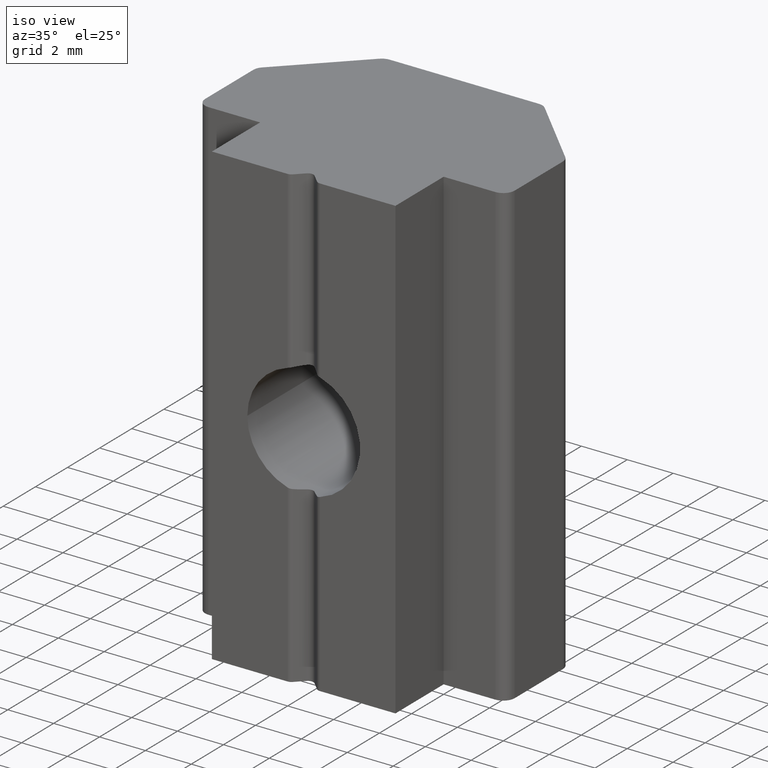
[diagram: clean part render]
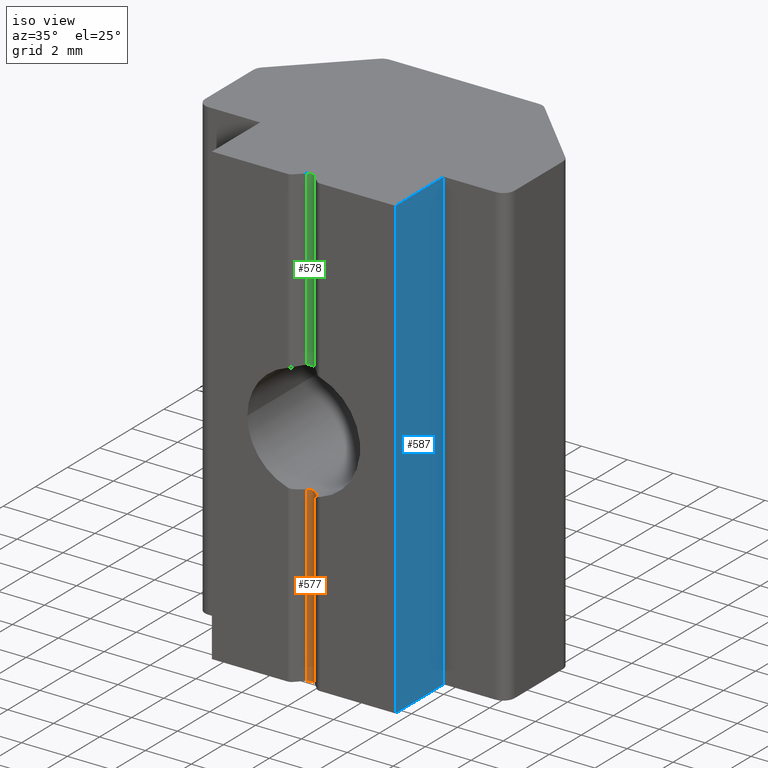
[diagram: same view with three faces highlighted in distinct colors, each labeled with its STEP entity id]
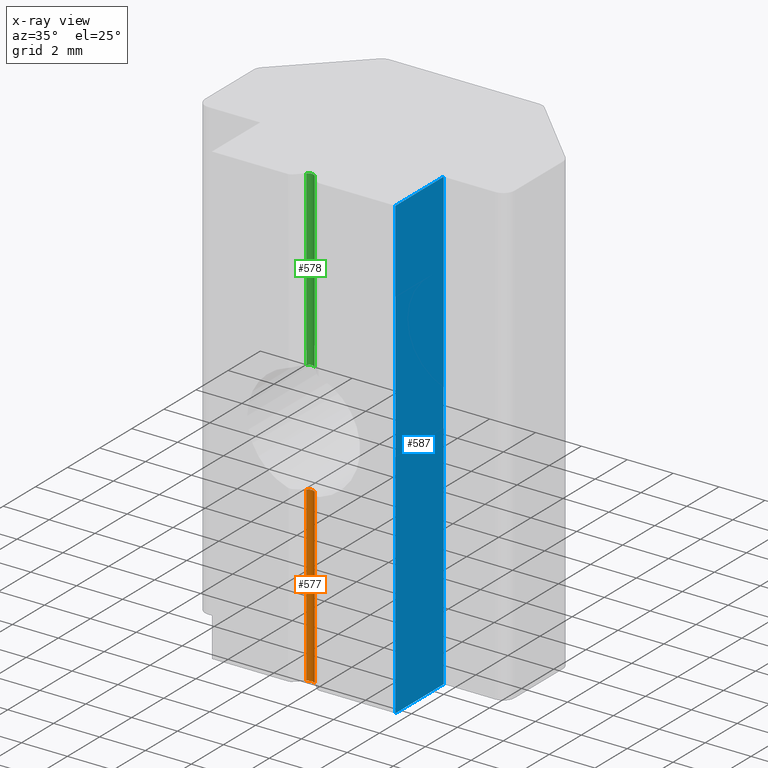
[diagram: x-ray of the same camera — body ghosted, the three highlighted faces saturated]
A machine part, iso view with three faces highlighted in distinct colors.
The next image is the same camera in x-ray (body ghosted, the three faces saturated) — at least one of them is partly hidden behind the body in this view.
Their STEP definitions:

[orange] entity #577 — the highlighted cylindrical surface (edge-blend (fillet) strip) has radius 0.25 mm, axis along (0, 0, 1).
#37=FACE_OUTER_BOUND('',#67,.T.);
#67=EDGE_LOOP('',(#415,#416,#417,#418));
#99=B_SPLINE_CURVE_WITH_KNOTS('',3,(#871,#872,#873,#874,#875,#876,#877,
#878,#879,#880),.UNSPECIFIED.,.F.,.F.,(4,2,2,2,4),(0.0188483560750807,0.0282724998026584,
0.037696643530236,0.0471207872578136,0.0565449309853912),.UNSPECIFIED.);
#113=LINE('',#941,#168);
#114=LINE('',#945,#169);
#168=VECTOR('',#719,10.);
#169=VECTOR('',#724,10.);
#220=CIRCLE('',#638,0.25);
#242=VERTEX_POINT('',#868);
#243=VERTEX_POINT('',#870);
#258=VERTEX_POINT('',#939);
#259=VERTEX_POINT('',#943);
#302=EDGE_CURVE('',#243,#242,#99,.T.);
#321=EDGE_CURVE('',#258,#242,#113,.T.);
#322=EDGE_CURVE('',#259,#258,#220,.T.);
#323=EDGE_CURVE('',#259,#243,#114,.T.);
#415=ORIENTED_EDGE('',*,*,#302,.T.);
#416=ORIENTED_EDGE('',*,*,#321,.F.);
#417=ORIENTED_EDGE('',*,*,#322,.F.);
#418=ORIENTED_EDGE('',*,*,#323,.T.);
#562=CYLINDRICAL_SURFACE('',#637,0.25);
#577=ADVANCED_FACE('',(#37),#562,.F.);
#637=AXIS2_PLACEMENT_3D('',#942,#720,#721);
#638=AXIS2_PLACEMENT_3D('',#944,#722,#723);
#719=DIRECTION('',(0.,0.,1.));
#720=DIRECTION('center_axis',(0.,0.,1.));
#721=DIRECTION('ref_axis',(0.707106781186547,0.707106781186548,0.));
#722=DIRECTION('center_axis',(0.,0.,1.));
#723=DIRECTION('ref_axis',(0.707106781186547,0.707106781186548,0.));
#724=DIRECTION('',(0.,0.,1.));
#868=CARTESIAN_POINT('',(-0.176776695296637,-2.57322330470336,-2.45213626252702));
#870=CARTESIAN_POINT('',(0.176776695296638,-2.57322330470336,-2.45213626252702));
#871=CARTESIAN_POINT('Ctrl Pts',(0.176776695296637,-2.57322330470336,-2.45213626252702));
#872=CARTESIAN_POINT('Ctrl Pts',(0.154592580057102,-2.55103918946383,-2.45373553522653));
#873=CARTESIAN_POINT('Ctrl Pts',(0.126495220658897,-2.53180269429252,-2.45543701473341));
#874=CARTESIAN_POINT('Ctrl Pts',(0.0649067455557279,-2.5062825004358,-2.45783626153865));
#875=CARTESIAN_POINT('Ctrl Pts',(0.0314138124252587,-2.5,-2.4585));
#876=CARTESIAN_POINT('Ctrl Pts',(-0.0314138124252588,-2.5,-2.4585));
#877=CARTESIAN_POINT('Ctrl Pts',(-0.064906745555728,-2.5062825004358,-2.45783626153865));
#878=CARTESIAN_POINT('Ctrl Pts',(-0.126495220658897,-2.53180269429252,-2.45543701473341));
#879=CARTESIAN_POINT('Ctrl Pts',(-0.154592580057102,-2.55103918946383,-2.45373553522653));
#880=CARTESIAN_POINT('Ctrl Pts',(-0.176776695296637,-2.57322330470336,-2.45213626252702));
#939=CARTESIAN_POINT('',(-0.176776695296637,-2.57322330470336,-10.));
#941=CARTESIAN_POINT('',(-0.176776695296637,-2.57322330470336,0.));
#942=CARTESIAN_POINT('Origin',(-4.71467650385233E-30,-2.75,0.));
#943=CARTESIAN_POINT('',(0.176776695296638,-2.57322330470336,-10.));
#944=CARTESIAN_POINT('Origin',(-4.71467650385233E-30,-2.75,-10.));
#945=CARTESIAN_POINT('',(0.176776695296638,-2.57322330470336,0.));

[blue] entity #587 — the highlighted planar face has unit normal (1, 0, 0).
#23=PLANE('',#658);
#47=FACE_OUTER_BOUND('',#77,.T.);
#77=EDGE_LOOP('',(#476,#477,#478,#479));
#109=LINE('',#934,#164);
#135=LINE('',#1007,#190);
#136=LINE('',#1010,#191);
#137=LINE('',#1011,#192);
#164=VECTOR('',#713,10.);
#190=VECTOR('',#783,10.);
#191=VECTOR('',#786,10.);
#192=VECTOR('',#787,10.);
#255=VERTEX_POINT('',#931);
#256=VERTEX_POINT('',#933);
#281=VERTEX_POINT('',#1005);
#282=VERTEX_POINT('',#1009);
#317=EDGE_CURVE('',#255,#256,#109,.T.);
#354=EDGE_CURVE('',#281,#255,#135,.T.);
#355=EDGE_CURVE('',#282,#281,#136,.T.);
#356=EDGE_CURVE('',#256,#282,#137,.T.);
#476=ORIENTED_EDGE('',*,*,#355,.F.);
#477=ORIENTED_EDGE('',*,*,#356,.F.);
#478=ORIENTED_EDGE('',*,*,#317,.F.);
#479=ORIENTED_EDGE('',*,*,#354,.F.);
#587=ADVANCED_FACE('',(#47),#23,.T.);
#658=AXIS2_PLACEMENT_3D('',#1008,#784,#785);
#713=DIRECTION('',(0.,0.,1.));
#783=DIRECTION('',(0.,-1.,0.));
#784=DIRECTION('center_axis',(1.,0.,0.));
#785=DIRECTION('ref_axis',(0.,1.,0.));
#786=DIRECTION('',(0.,0.,-1.));
#787=DIRECTION('',(0.,1.,0.));
#931=CARTESIAN_POINT('',(4.,-3.,-10.));
#933=CARTESIAN_POINT('',(4.,-3.,10.));
#934=CARTESIAN_POINT('',(4.,-3.,0.));
#1005=CARTESIAN_POINT('',(4.,0.,-10.));
#1007=CARTESIAN_POINT('',(4.,-3.,-10.));
#1008=CARTESIAN_POINT('Origin',(4.,-3.,0.));
#1009=CARTESIAN_POINT('',(4.,0.,10.));
#1010=CARTESIAN_POINT('',(4.,0.,0.));
#1011=CARTESIAN_POINT('',(4.,-3.,10.));

[green] entity #578 — the highlighted cylindrical surface (edge-blend (fillet) strip) has radius 0.25 mm, axis along (0, 0, 1).
#38=FACE_OUTER_BOUND('',#68,.T.);
#68=EDGE_LOOP('',(#419,#420,#421,#422));
#102=B_SPLINE_CURVE_WITH_KNOTS('',3,(#902,#903,#904,#905,#906,#907,#908,
#909,#910,#911),.UNSPECIFIED.,.F.,.F.,(4,2,2,2,4),(0.0942416431355526,0.10366578686313,
0.113089930590708,0.122514074318285,0.131938218045863),.UNSPECIFIED.);
#115=LINE('',#948,#170);
#116=LINE('',#951,#171);
#170=VECTOR('',#727,10.);
#171=VECTOR('',#730,10.);
#221=CIRCLE('',#640,0.25);
#248=VERTEX_POINT('',#899);
#249=VERTEX_POINT('',#901);
#260=VERTEX_POINT('',#947);
#261=VERTEX_POINT('',#949);
#308=EDGE_CURVE('',#249,#248,#102,.T.);
#324=EDGE_CURVE('',#248,#260,#115,.T.);
#325=EDGE_CURVE('',#261,#260,#221,.T.);
#326=EDGE_CURVE('',#249,#261,#116,.T.);
#419=ORIENTED_EDGE('',*,*,#308,.T.);
#420=ORIENTED_EDGE('',*,*,#324,.T.);
#421=ORIENTED_EDGE('',*,*,#325,.F.);
#422=ORIENTED_EDGE('',*,*,#326,.F.);
#563=CYLINDRICAL_SURFACE('',#639,0.25);
#578=ADVANCED_FACE('',(#38),#563,.F.);
#639=AXIS2_PLACEMENT_3D('',#946,#725,#726);
#640=AXIS2_PLACEMENT_3D('',#950,#728,#729);
#725=DIRECTION('center_axis',(0.,0.,1.));
#726=DIRECTION('ref_axis',(0.707106781186547,0.707106781186548,0.));
#727=DIRECTION('',(0.,0.,1.));
#728=DIRECTION('center_axis',(0.,0.,-1.));
#729=DIRECTION('ref_axis',(0.707106781186547,0.707106781186548,0.));
#730=DIRECTION('',(0.,0.,1.));
#899=CARTESIAN_POINT('',(0.176776695296638,-2.57322330470336,2.45213626252702));
#901=CARTESIAN_POINT('',(-0.176776695296637,-2.57322330470336,2.45213626252702));
#902=CARTESIAN_POINT('Ctrl Pts',(-0.176776695296637,-2.57322330470336,2.45213626252702));
#903=CARTESIAN_POINT('Ctrl Pts',(-0.154592580057102,-2.55103918946383,2.45373553522653));
#904=CARTESIAN_POINT('Ctrl Pts',(-0.126495220658897,-2.53180269429252,2.45543701473341));
#905=CARTESIAN_POINT('Ctrl Pts',(-0.064906745555728,-2.5062825004358,2.45783626153865));
#906=CARTESIAN_POINT('Ctrl Pts',(-0.0314138124252588,-2.5,2.4585));
#907=CARTESIAN_POINT('Ctrl Pts',(0.0314138124252587,-2.5,2.4585));
#908=CARTESIAN_POINT('Ctrl Pts',(0.0649067455557279,-2.5062825004358,2.45783626153865));
#909=CARTESIAN_POINT('Ctrl Pts',(0.126495220658897,-2.53180269429252,2.45543701473341));
#910=CARTESIAN_POINT('Ctrl Pts',(0.154592580057102,-2.55103918946383,2.45373553522653));
#911=CARTESIAN_POINT('Ctrl Pts',(0.176776695296637,-2.57322330470336,2.45213626252702));
#946=CARTESIAN_POINT('Origin',(-4.71467650385233E-30,-2.75,0.));
#947=CARTESIAN_POINT('',(0.176776695296638,-2.57322330470336,10.));
#948=CARTESIAN_POINT('',(0.176776695296638,-2.57322330470336,0.));
#949=CARTESIAN_POINT('',(-0.176776695296637,-2.57322330470336,10.));
#950=CARTESIAN_POINT('Origin',(-4.71467650385233E-30,-2.75,10.));
#951=CARTESIAN_POINT('',(-0.176776695296637,-2.57322330470336,0.));